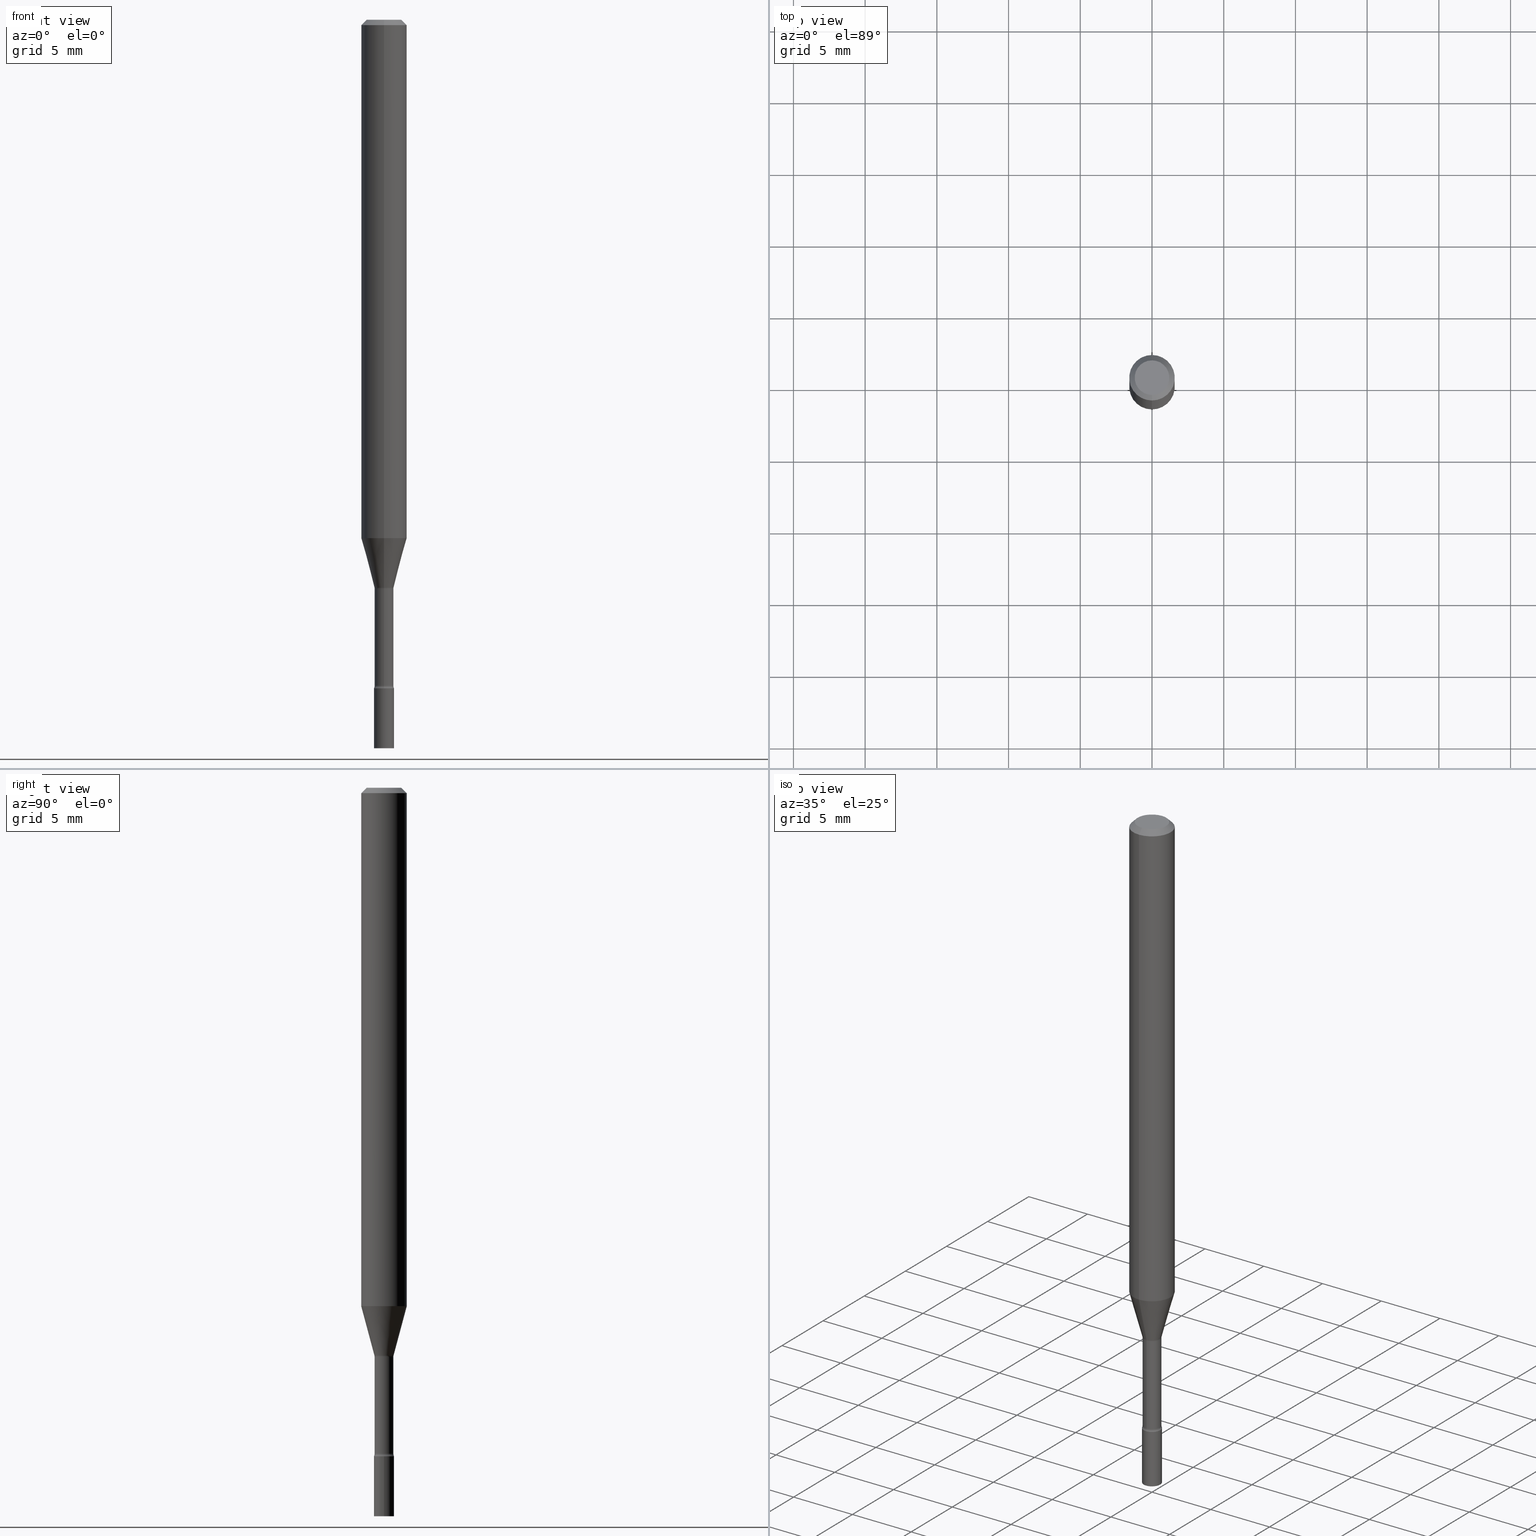
[diagram: canonical four-view strip — front | top / right | iso, engineering-drawing reading convention]
A machine part, canonical four-view strip (front | top / right | iso — engineering-drawing reading convention). The complete STEP part file that produces these views, byte-faithful:
ISO-10303-21;
HEADER;
FILE_DESCRIPTION (( 'STEP AP203' ),
    '1' );
FILE_NAME ('03465.STEP',
    '2024-03-08T21:26:40',
    ( '' ),
    ( '' ),
    'SwSTEP 2.0',
    'SolidWorks 2023',
    '' );
FILE_SCHEMA (( 'CONFIG_CONTROL_DESIGN' ));
ENDSEC;

DATA;
#1 = AXIS2_PLACEMENT_3D ( 'NONE', #92, #50, #341 ) ;
#2 = DIRECTION ( 'NONE',  ( 7.105427357601001859E-15, 1.000000000000000000, 0.000000000000000000 ) ) ;
#3 = AXIS2_PLACEMENT_3D ( 'NONE', #17, #498, #186 ) ;
#4 = LINE ( 'NONE', #168, #382 ) ;
#5 = APPROVAL ( #232, 'UNSPECIFIED' ) ;
#6 = VERTEX_POINT ( 'NONE', #208 ) ;
#7 = EDGE_CURVE ( 'NONE', #286, #110, #428, .T. ) ;
#8 = APPROVAL_PERSON_ORGANIZATION ( #204, #357, #400 ) ;
#9 = CONICAL_SURFACE ( 'NONE', #285, 0.06250000000000000000, 0.7853981633974483900 ) ;
#10 = DIRECTION ( 'NONE',  ( -6.982962677686265922E-15, -1.000000000000000000, 4.370956789862821150E-15 ) ) ;
#11 = DIRECTION ( 'NONE',  ( -2.445551873642688287E-29, 3.491362381516025357E-15, 1.000000000000000000 ) ) ;
#12 = CYLINDRICAL_SURFACE ( 'NONE', #305, 0.06250000000000000000 ) ;
#13 = DIRECTION ( 'NONE',  ( -4.851104656540964275E-15, -0.7071067811865500152, -0.7071067811865450192 ) ) ;
#14 = ADVANCED_FACE ( 'NONE', ( #201 ), #182, .F. ) ;
#15 = CARTESIAN_POINT ( 'NONE',  ( 4.487435259349726059E-29, -6.406868256777172111E-15, -1.834999999999999964 ) ) ;
#16 = TOROIDAL_SURFACE ( 'NONE', #260, 0.04085000000000003212, 0.01500000000000002200 ) ;
#17 = CARTESIAN_POINT ( 'NONE',  ( 4.470861561405432564E-29, -6.382771118735863784E-15, -1.828160592130893436 ) ) ;
#18 = DIRECTION ( 'NONE',  ( 1.000000000000000000, -6.982962677686279332E-15, 0.000000000000000000 ) ) ;
#19 =( LENGTH_UNIT ( ) NAMED_UNIT ( * ) SI_UNIT ( $, .METRE. ) );
#20 = DIRECTION ( 'NONE',  ( 1.000000000000000000, -6.982962677686279332E-15, 0.000000000000000000 ) ) ;
#21 = LENGTH_MEASURE_WITH_UNIT ( LENGTH_MEASURE( 0.02539999999999999897 ), #19 );
#22 = CARTESIAN_POINT ( 'NONE',  ( -4.364351673553916201E-16, -0.06250000000000000000, 2.182101488447516095E-16 ) ) ;
#23 = EDGE_CURVE ( 'NONE', #43, #371, #368, .T. ) ;
#24 = EDGE_CURVE ( 'NONE', #72, #487, #299, .T. ) ;
#25 = ORIENTED_EDGE ( 'NONE', *, *, #24, .T. ) ;
#26 = AXIS2_PLACEMENT_3D ( 'NONE', #54, #478, #2 ) ;
#27 = PERSON_AND_ORGANIZATION ( #253, #189 ) ;
#28 = ORIENTED_EDGE ( 'NONE', *, *, #240, .F. ) ;
#29 = EDGE_LOOP ( 'NONE', ( #296, #414, #160, #506 ) ) ;
#30 = AXIS2_PLACEMENT_3D ( 'NONE', #64, #356, #109 ) ;
#31 = PERSON_AND_ORGANIZATION_ROLE ( 'creator' ) ;
#32 = CIRCLE ( 'NONE', #26, 0.01500000000000003587 ) ;
#33 = EDGE_LOOP ( 'NONE', ( #80, #472, #462, #509 ) ) ;
#34 = ADVANCED_FACE ( 'NONE', ( #273 ), #454, .T. ) ;
#35 = EDGE_LOOP ( 'NONE', ( #331, #248, #443, #515 ) ) ;
#36 = CARTESIAN_POINT ( 'NONE',  ( 0.000000000000000000, 0.000000000000000000, 0.000000000000000000 ) ) ;
#37 = CC_DESIGN_APPROVAL ( #5, ( #335 ) ) ;
#38 = AXIS2_PLACEMENT_3D ( 'NONE', #46, #225, #494 ) ;
#39 = EDGE_LOOP ( 'NONE', ( #163, #297, #255, #105 ) ) ;
#40 = ORIENTED_EDGE ( 'NONE', *, *, #240, .T. ) ;
#41 = CARTESIAN_POINT ( 'NONE',  ( -1.805095852181899771E-16, -0.02585000000000000492, 9.025171756218928111E-17 ) ) ;
#42 = ORIENTED_EDGE ( 'NONE', *, *, #147, .T. ) ;
#43 = VERTEX_POINT ( 'NONE', #352 ) ;
#44 = ADVANCED_FACE ( 'NONE', ( #311 ), #432, .T. ) ;
#45 = PRODUCT_DEFINITION_SHAPE ( 'NONE', 'NONE',  #332 ) ;
#46 = CARTESIAN_POINT ( 'NONE',  ( 4.890937612370273194E-29, -6.982962677686291165E-15, -2.000000000000000000 ) ) ;
#47 = AXIS2_PLACEMENT_3D ( 'NONE', #488, #49, #122 ) ;
#48 = AXIS2_PLACEMENT_3D ( 'NONE', #364, #520, #173 ) ;
#49 = DIRECTION ( 'NONE',  ( -1.000000000000000000, 6.982962677686265922E-15, -4.883557194083112340E-29 ) ) ;
#50 = DIRECTION ( 'NONE',  ( -2.445551873642688007E-29, 3.491362381516025751E-15, 1.000000000000000000 ) ) ;
#51 = CARTESIAN_POINT ( 'NONE',  ( 3.668327810464039174E-31, -5.237043572274049745E-17, -0.01500000000000003067 ) ) ;
#52 = FACE_OUTER_BOUND ( 'NONE', #431, .T. ) ;
#53 =( NAMED_UNIT ( * ) PLANE_ANGLE_UNIT ( ) SI_UNIT ( $, .RADIAN. ) );
#54 = CARTESIAN_POINT ( 'NONE',  ( 2.902567075580391181E-16, 0.04084999999999455039, -1.561974787463811243 ) ) ;
#55 = APPLICATION_CONTEXT ( 'configuration controlled 3d designs of mechanical parts and assemblies' ) ;
#56 = CARTESIAN_POINT ( 'NONE',  ( 4.440892098500625669E-16, 0.06250000000000000000, -2.182101488447516095E-16 ) ) ;
#57 = CARTESIAN_POINT ( 'NONE',  ( 1.920314736364172109E-16, 0.02749999999999359554, -1.834999999999999964 ) ) ;
#58 = DIRECTION ( 'NONE',  ( -6.982962677686265922E-15, -1.000000000000000000, 3.491362381516025357E-15 ) ) ;
#59 = DIRECTION ( 'NONE',  ( 6.982962677686265922E-15, 1.000000000000000000, -3.491362381516025357E-15 ) ) ;
#60 = EDGE_CURVE ( 'NONE', #72, #399, #212, .T. ) ;
#61 = VECTOR ( 'NONE', #85, 39.37007874015748143 ) ;
#62 = DIRECTION ( 'NONE',  ( -2.445468806185136597E-29, 3.491481338843145583E-15, 1.000000000000000000 ) ) ;
#63 = EDGE_CURVE ( 'NONE', #487, #123, #218, .T. ) ;
#64 = CARTESIAN_POINT ( 'NONE',  ( 2.902567075580457741E-16, 0.04084999999999364834, -1.828160592130893436 ) ) ;
#65 = DIRECTION ( 'NONE',  ( 1.000000000000000000, -6.982962677686266711E-15, 4.876176775795935793E-29 ) ) ;
#66 = ORIENTED_EDGE ( 'NONE', *, *, #198, .T. ) ;
#67 = PERSON_AND_ORGANIZATION ( #253, #189 ) ;
#68 = CARTESIAN_POINT ( 'NONE',  ( 3.810396037054489114E-29, -5.439865547662276768E-15, -1.558092501787273099 ) ) ;
#69 = EDGE_LOOP ( 'NONE', ( #25, #75, #169, #179 ) ) ;
#70 = DIRECTION ( 'NONE',  ( -2.445551873642688287E-29, 3.491362381516025357E-15, 1.000000000000000000 ) ) ;
#71 = LINE ( 'NONE', #327, #434 ) ;
#72 = VERTEX_POINT ( 'NONE', #77 ) ;
#73 = CARTESIAN_POINT ( 'NONE',  ( 4.487587688134332838E-29, -6.406649970081907516E-15, -1.834999999999999964 ) ) ;
#74 = EDGE_LOOP ( 'NONE', ( #363, #243, #283, #220 ) ) ;
#75 = ORIENTED_EDGE ( 'NONE', *, *, #63, .T. ) ;
#76 = SHAPE_DEFINITION_REPRESENTATION ( #45, #161 ) ;
#77 = CARTESIAN_POINT ( 'NONE',  ( -1.840786654675983805E-16, -0.02636111260566941297, -1.558092501787273099 ) ) ;
#78 = LOCAL_TIME ( 16, 26, 40.00000000000000000, #309 ) ;
#79 = ADVANCED_FACE ( 'NONE', ( #497 ), #379, .T. ) ;
#80 = ORIENTED_EDGE ( 'NONE', *, *, #408, .T. ) ;
#81 = CARTESIAN_POINT ( 'NONE',  ( 4.487435259349726059E-29, -6.406868256777172111E-15, -1.834999999999999964 ) ) ;
#82 = AXIS2_PLACEMENT_3D ( 'NONE', #292, #366, #249 ) ;
#83 = DIRECTION ( 'NONE',  ( -1.807323732225326589E-15, -0.2588190451025176864, 0.9659258262890690894 ) ) ;
#84 = DIRECTION ( 'NONE',  ( -2.445551873642688007E-29, 3.491362381516025751E-15, 1.000000000000000000 ) ) ;
#85 = DIRECTION ( 'NONE',  ( 1.839019923739596765E-15, 0.2588190451025244587, 0.9659258262890673130 ) ) ;
#86 = ADVANCED_FACE ( 'NONE', ( #52 ), #9, .T. ) ;
#87 = ORIENTED_EDGE ( 'NONE', *, *, #147, .F. ) ;
#88 = CIRCLE ( 'NONE', #48, 0.01500000000000001853 ) ;
#89 = DIRECTION ( 'NONE',  ( 6.982962677686265922E-15, 1.000000000000000000, -3.483106191921935554E-15 ) ) ;
#90 = AXIS2_PLACEMENT_3D ( 'NONE', #427, #320, #411 ) ;
#91 = EDGE_CURVE ( 'NONE', #123, #466, #381, .T. ) ;
#92 = CARTESIAN_POINT ( 'NONE',  ( 0.000000000000000000, 0.000000000000000000, 0.000000000000000000 ) ) ;
#93 = CC_DESIGN_PERSON_AND_ORGANIZATION_ASSIGNMENT ( #517, #31, ( #335 ) ) ;
#94 = CARTESIAN_POINT ( 'NONE',  ( 4.487435259349726059E-29, -6.406868256777172111E-15, -1.834999999999999964 ) ) ;
#95 = FACE_OUTER_BOUND ( 'NONE', #254, .T. ) ;
#96 = CIRCLE ( 'NONE', #3, 0.02585000000000001186 ) ;
#97 = CARTESIAN_POINT ( 'NONE',  ( 3.480559163964085406E-29, -4.968977948361667747E-15, -1.423220337902600718 ) ) ;
#98 = DIRECTION ( 'NONE',  ( 2.438088387897960049E-29, -3.491481338843145188E-15, -1.000000000000000000 ) ) ;
#99 = DIRECTION ( 'NONE',  ( 1.000000000000000000, 0.000000000000000000, 0.000000000000000000 ) ) ;
#100 = LINE ( 'NONE', #272, #438 ) ;
#101 = CARTESIAN_POINT ( 'NONE',  ( 4.440892098500972274E-16, 0.06249999999999501094, -1.423220337902601162 ) ) ;
#102 = MECHANICAL_CONTEXT ( 'NONE', #136, 'mechanical' ) ;
#103 = SECURITY_CLASSIFICATION ( '', '', #239 ) ;
#104 = CARTESIAN_POINT ( 'NONE',  ( -4.287811248607203282E-16, -0.06250000000000005551, -0.01499999999999981209 ) ) ;
#105 = ORIENTED_EDGE ( 'NONE', *, *, #7, .F. ) ;
#106 = CLOSED_SHELL ( 'NONE', ( #301, #44, #79, #34 ) ) ;
#107 = CARTESIAN_POINT ( 'NONE',  ( 0.000000000000000000, 0.000000000000000000, 0.000000000000000000 ) ) ;
#108 = CARTESIAN_POINT ( 'NONE',  ( -0.02750000000000000014, -6.499516214897703913E-15, -2.000000000000000000 ) ) ;
#109 = DIRECTION ( 'NONE',  ( 7.105427357601001859E-15, 1.000000000000000000, 0.000000000000000000 ) ) ;
#110 = VERTEX_POINT ( 'NONE', #457 ) ;
#111 = PERSON_AND_ORGANIZATION_ROLE ( 'classification_officer' ) ;
#112 = CARTESIAN_POINT ( 'NONE',  ( -1.805095852181453325E-16, -0.02585000000000639564, -1.828160592130893436 ) ) ;
#113 = CC_DESIGN_SECURITY_CLASSIFICATION ( #103, ( #335 ) ) ;
#114 = ADVANCED_FACE ( 'NONE', ( #451 ), #484, .T. ) ;
#115 = AXIS2_PLACEMENT_3D ( 'NONE', #81, #246, #244 ) ;
#116 = ORIENTED_EDGE ( 'NONE', *, *, #342, .F. ) ;
#117 = DATE_AND_TIME ( #199, #328 ) ;
#118 = ORIENTED_EDGE ( 'NONE', *, *, #60, .T. ) ;
#119 = COORDINATED_UNIVERSAL_TIME_OFFSET ( 5, 0, .BEHIND. ) ;
#120 = CYLINDRICAL_SURFACE ( 'NONE', #460, 0.02585000000000000492 ) ;
#121 = EDGE_CURVE ( 'NONE', #300, #360, #96, .T. ) ;
#122 = DIRECTION ( 'NONE',  ( -6.982962677686268288E-15, -1.000000000000000000, 0.000000000000000000 ) ) ;
#123 = VERTEX_POINT ( 'NONE', #101 ) ;
#124 = EDGE_CURVE ( 'NONE', #508, #210, #294, .T. ) ;
#125 = EDGE_CURVE ( 'NONE', #399, #391, #127, .T. ) ;
#126 = ORIENTED_EDGE ( 'NONE', *, *, #394, .F. ) ;
#127 = CIRCLE ( 'NONE', #175, 0.02584999999999999798 ) ;
#128 = VERTEX_POINT ( 'NONE', #262 ) ;
#129 = VECTOR ( 'NONE', #317, 39.37007874015748143 ) ;
#130 = CYLINDRICAL_SURFACE ( 'NONE', #372, 0.02750000000000000014 ) ;
#131 = FACE_OUTER_BOUND ( 'NONE', #35, .T. ) ;
#132 = CARTESIAN_POINT ( 'NONE',  ( 3.316907271900976096E-16, 0.04749999999999999362, -1.802994938224648205E-16 ) ) ;
#133 = CIRCLE ( 'NONE', #409, 0.06250000000000000000 ) ;
#134 = ORIENTED_EDGE ( 'NONE', *, *, #503, .T. ) ;
#135 = DIRECTION ( 'NONE',  ( -2.445551873642688007E-29, 3.491362381516025751E-15, 1.000000000000000000 ) ) ;
#136 = APPLICATION_CONTEXT ( 'configuration controlled 3d designs of mechanical parts and assemblies' ) ;
#137 = CARTESIAN_POINT ( 'NONE',  ( 0.02750000000000000014, -7.174994151322663658E-15, -2.000000000000000000 ) ) ;
#138 = CARTESIAN_POINT ( 'NONE',  ( 3.810396037054489114E-29, -5.439865547662276768E-15, -1.558092501787273099 ) ) ;
#139 = CARTESIAN_POINT ( 'NONE',  ( 3.668327810464039174E-31, -5.237043572274049745E-17, -0.01500000000000003067 ) ) ;
#140 = DIRECTION ( 'NONE',  ( -6.982962677686265922E-15, -1.000000000000000000, 3.491362381516025357E-15 ) ) ;
#141 = CARTESIAN_POINT ( 'NONE',  ( 3.480559163964085406E-29, -4.968977948361667747E-15, -1.423220337902600718 ) ) ;
#142 = DIRECTION ( 'NONE',  ( 2.445551873642688007E-29, -3.491362381516025751E-15, -1.000000000000000000 ) ) ;
#143 = DIRECTION ( 'NONE',  ( -2.445551873642688007E-29, 3.491362381516025751E-15, 1.000000000000000000 ) ) ;
#144 = FACE_OUTER_BOUND ( 'NONE', #437, .T. ) ;
#145 =( CONVERSION_BASED_UNIT ( 'INCH', #21 ) LENGTH_UNIT ( ) NAMED_UNIT ( #184 ) );
#146 = MANIFOLD_SOLID_BREP ( 'Body-Move/Copy2[1]', #106 ) ;
#147 = EDGE_CURVE ( 'NONE', #371, #466, #416, .T. ) ;
#148 = MANIFOLD_SOLID_BREP ( 'Body-Move/Copy2[2]', #330 ) ;
#149 = DIRECTION ( 'NONE',  ( -6.982962677686266711E-15, -1.000000000000000000, 0.000000000000000000 ) ) ;
#150 = PERSON_AND_ORGANIZATION_ROLE ( 'creator' ) ;
#151 = LOCAL_TIME ( 16, 26, 40.00000000000000000, #119 ) ;
#152 = AXIS2_PLACEMENT_3D ( 'NONE', #282, #98, #268 ) ;
#153 = DIRECTION ( 'NONE',  ( 0.000000000000000000, 0.000000000000000000, 1.000000000000000000 ) ) ;
#154 = ORIENTED_EDGE ( 'NONE', *, *, #203, .F. ) ;
#155 = DATE_TIME_ROLE ( 'classification_date' ) ;
#156 = DIRECTION ( 'NONE',  ( -6.982962677686266711E-15, -1.000000000000000000, 0.000000000000000000 ) ) ;
#157 = DIRECTION ( 'NONE',  ( -6.982962677686265922E-15, -1.000000000000000000, 0.000000000000000000 ) ) ;
#158 = EDGE_LOOP ( 'NONE', ( #510, #126 ) ) ;
#159 = DIRECTION ( 'NONE',  ( -6.982962677686265922E-15, -1.000000000000000000, 3.491362381516025751E-15 ) ) ;
#160 = ORIENTED_EDGE ( 'NONE', *, *, #319, .F. ) ;
#161 = ADVANCED_BREP_SHAPE_REPRESENTATION ( '03465', ( #146, #148, #312 ), #241 ) ;
#162 = AXIS2_PLACEMENT_3D ( 'NONE', #68, #235, #157 ) ;
#163 = ORIENTED_EDGE ( 'NONE', *, *, #445, .F. ) ;
#164 = CC_DESIGN_PERSON_AND_ORGANIZATION_ASSIGNMENT ( #482, #111, ( #103 ) ) ;
#165 = FACE_OUTER_BOUND ( 'NONE', #33, .T. ) ;
#166 = CARTESIAN_POINT ( 'NONE',  ( 1.873069706851234863E-16, 0.02636111260565853626, -1.558092501787273099 ) ) ;
#167 = EDGE_CURVE ( 'NONE', #391, #399, #242, .T. ) ;
#168 = CARTESIAN_POINT ( 'NONE',  ( -1.840786654675983805E-16, -0.02636111260566941297, -1.558092501787273099 ) ) ;
#169 = ORIENTED_EDGE ( 'NONE', *, *, #476, .F. ) ;
#170 = ORIENTED_EDGE ( 'NONE', *, *, #167, .T. ) ;
#171 = APPROVAL_DATE_TIME ( #287, #357 ) ;
#172 = DIRECTION ( 'NONE',  ( -2.445551873642688007E-29, 3.491362381516025751E-15, 1.000000000000000000 ) ) ;
#173 = DIRECTION ( 'NONE',  ( -6.982962677686267499E-15, -1.000000000000000000, 0.000000000000000000 ) ) ;
#174 = AXIS2_PLACEMENT_3D ( 'NONE', #73, #276, #156 ) ;
#175 = AXIS2_PLACEMENT_3D ( 'NONE', #353, #501, #149 ) ;
#176 = CYLINDRICAL_SURFACE ( 'NONE', #448, 0.06250000000000000000 ) ;
#177 = EDGE_LOOP ( 'NONE', ( #197, #384 ) ) ;
#178 = LINE ( 'NONE', #41, #449 ) ;
#179 = ORIENTED_EDGE ( 'NONE', *, *, #264, .F. ) ;
#180 = ADVANCED_FACE ( 'NONE', ( #95 ), #16, .F. ) ;
#181 = TOROIDAL_SURFACE ( 'NONE', #425, 0.04085000000000000436, 0.01500000000000003414 ) ;
#182 = TOROIDAL_SURFACE ( 'NONE', #90, 0.04085000000000000436, 0.01500000000000003414 ) ;
#183 = EDGE_CURVE ( 'NONE', #123, #479, #362, .T. ) ;
#184 = DIMENSIONAL_EXPONENTS ( 1.000000000000000000, 0.000000000000000000, 0.000000000000000000, 0.000000000000000000, 0.000000000000000000, 0.000000000000000000, 0.000000000000000000 ) ;
#185 = CARTESIAN_POINT ( 'NONE',  ( 4.470709700753047363E-29, -6.382988591833448692E-15, -1.828160592130893214 ) ) ;
#186 = DIRECTION ( 'NONE',  ( -6.982962677686265922E-15, -1.000000000000000000, 0.000000000000000000 ) ) ;
#187 = COORDINATED_UNIVERSAL_TIME_OFFSET ( 5, 0, .BEHIND. ) ;
#188 = DIRECTION ( 'NONE',  ( -6.982962677686266711E-15, -1.000000000000000000, 3.491362381516025751E-15 ) ) ;
#189 = ORGANIZATION ( 'UNSPECIFIED', 'UNSPECIFIED', '' ) ;
#190 = DIRECTION ( 'NONE',  ( -2.445551873642688007E-29, 3.491362381516025751E-15, 1.000000000000000000 ) ) ;
#191 = APPROVAL_STATUS ( 'not_yet_approved' ) ;
#192 = CARTESIAN_POINT ( 'NONE',  ( 4.890937612370273194E-29, -6.982962677686291165E-15, -2.000000000000000000 ) ) ;
#193 = PERSON_AND_ORGANIZATION ( #253, #189 ) ;
#194 = CARTESIAN_POINT ( 'NONE',  ( 1.836752971939858837E-16, 0.02585000000000000492, -9.025171756218928111E-17 ) ) ;
#195 = CIRCLE ( 'NONE', #380, 0.06250000000000000000 ) ;
#196 = TOROIDAL_SURFACE ( 'NONE', #322, 0.04085000000000003212, 0.01500000000000002200 ) ;
#197 = ORIENTED_EDGE ( 'NONE', *, *, #214, .T. ) ;
#198 = EDGE_CURVE ( 'NONE', #466, #405, #133, .T. ) ;
#199 = CALENDAR_DATE ( 2024, 8, 3 ) ;
#200 = EDGE_LOOP ( 'NONE', ( #213, #426, #430, #481 ) ) ;
#201 = FACE_OUTER_BOUND ( 'NONE', #442, .T. ) ;
#202 = VECTOR ( 'NONE', #13, 39.37007874015748143 ) ;
#203 = EDGE_CURVE ( 'NONE', #210, #508, #419, .T. ) ;
#204 = PERSON_AND_ORGANIZATION ( #253, #189 ) ;
#205 = CC_DESIGN_DATE_AND_TIME_ASSIGNMENT ( #473, #155, ( #103 ) ) ;
#206 = ORIENTED_EDGE ( 'NONE', *, *, #124, .F. ) ;
#207 = DESIGN_CONTEXT ( 'detailed design', #55, 'design' ) ;
#208 = CARTESIAN_POINT ( 'NONE',  ( 1.953992523340724679E-16, 0.02749999999999360248, -1.834999999999999964 ) ) ;
#209 = EDGE_CURVE ( 'NONE', #43, #405, #418, .T. ) ;
#210 = VERTEX_POINT ( 'NONE', #137 ) ;
#211 = AXIS2_PLACEMENT_3D ( 'NONE', #57, #415, #280 ) ;
#212 = CIRCLE ( 'NONE', #47, 0.01500000000000003587 ) ;
#213 = ORIENTED_EDGE ( 'NONE', *, *, #386, .F. ) ;
#214 = EDGE_CURVE ( 'NONE', #371, #43, #461, .T. ) ;
#215 = AXIS2_PLACEMENT_3D ( 'NONE', #107, #313, #269 ) ;
#216 = FACE_OUTER_BOUND ( 'NONE', #200, .T. ) ;
#217 = AXIS2_PLACEMENT_3D ( 'NONE', #15, #270, #18 ) ;
#218 = LINE ( 'NONE', #166, #61 ) ;
#219 = CYLINDRICAL_SURFACE ( 'NONE', #1, 0.02585000000000000492 ) ;
#220 = ORIENTED_EDGE ( 'NONE', *, *, #198, .F. ) ;
#221 = DIRECTION ( 'NONE',  ( -2.445468806185136877E-29, 3.491481338843145188E-15, 1.000000000000000000 ) ) ;
#222 = DIRECTION ( 'NONE',  ( -6.982962677686265922E-15, -1.000000000000000000, 0.000000000000000000 ) ) ;
#223 = AXIS2_PLACEMENT_3D ( 'NONE', #429, #507, #389 ) ;
#224 = PERSON_AND_ORGANIZATION_ROLE ( 'design_owner' ) ;
#225 = DIRECTION ( 'NONE',  ( -2.445468806185136597E-29, 3.491481338843145583E-15, 1.000000000000000000 ) ) ;
#226 = AXIS2_PLACEMENT_3D ( 'NONE', #94, #259, #413 ) ;
#227 = ORIENTED_EDGE ( 'NONE', *, *, #337, .F. ) ;
#228 = CARTESIAN_POINT ( 'NONE',  ( 0.000000000000000000, 0.000000000000000000, 0.000000000000000000 ) ) ;
#229 = CC_DESIGN_PERSON_AND_ORGANIZATION_ASSIGNMENT ( #27, #358, ( #335 ) ) ;
#230 = ORIENTED_EDGE ( 'NONE', *, *, #408, .F. ) ;
#231 = ADVANCED_FACE ( 'NONE', ( #344 ), #196, .F. ) ;
#232 = APPROVAL_STATUS ( 'not_yet_approved' ) ;
#233 = CARTESIAN_POINT ( 'NONE',  ( 1.836752971940306269E-16, 0.02584999999999454401, -1.561974787463811021 ) ) ;
#234 = CONICAL_SURFACE ( 'NONE', #162, 0.02636111260566397288, 0.2617993877991497409 ) ;
#235 = DIRECTION ( 'NONE',  ( -2.445551873642688007E-29, 3.491362381516025751E-15, 1.000000000000000000 ) ) ;
#236 = CONICAL_SURFACE ( 'NONE', #314, 0.06250000000000000000, 0.7853981633974483900 ) ;
#237 = ORIENTED_EDGE ( 'NONE', *, *, #394, .T. ) ;
#238 = ORIENTED_EDGE ( 'NONE', *, *, #214, .F. ) ;
#239 = SECURITY_CLASSIFICATION_LEVEL ( 'unclassified' ) ;
#240 = EDGE_CURVE ( 'NONE', #487, #391, #32, .T. ) ;
#241 =( GEOMETRIC_REPRESENTATION_CONTEXT ( 3 ) GLOBAL_UNCERTAINTY_ASSIGNED_CONTEXT ( ( #433 ) ) GLOBAL_UNIT_ASSIGNED_CONTEXT ( ( #145, #53, #504 ) ) REPRESENTATION_CONTEXT ( 'NONE', 'WORKASPACE' ) );
#242 = CIRCLE ( 'NONE', #338, 0.02584999999999999798 ) ;
#243 = ORIENTED_EDGE ( 'NONE', *, *, #183, .T. ) ;
#244 = DIRECTION ( 'NONE',  ( 1.000000000000000000, -6.982962677686279332E-15, 0.000000000000000000 ) ) ;
#245 = ORIENTED_EDGE ( 'NONE', *, *, #337, .T. ) ;
#246 = DIRECTION ( 'NONE',  ( -2.445468806185136597E-29, 3.491481338843145583E-15, 1.000000000000000000 ) ) ;
#247 = CARTESIAN_POINT ( 'NONE',  ( 0.000000000000000000, 0.000000000000000000, 0.000000000000000000 ) ) ;
#248 = ORIENTED_EDGE ( 'NONE', *, *, #256, .T. ) ;
#249 = DIRECTION ( 'NONE',  ( -6.982962677686265922E-15, -1.000000000000000000, 0.000000000000000000 ) ) ;
#250 = ADVANCED_FACE ( 'NONE', ( #370 ), #236, .T. ) ;
#251 = CIRCLE ( 'NONE', #174, 0.02750000000000000014 ) ;
#252 = AXIS2_PLACEMENT_3D ( 'NONE', #192, #62, #20 ) ;
#253 = PERSON ( 'UNSPECIFIED', 'UNSPECIFIED', 'UNSPECIFIED', ('UNSPECIFIED'), ('UNSPECIFIED'), ('UNSPECIFIED') ) ;
#254 = EDGE_LOOP ( 'NONE', ( #258, #134, #237, #227 ) ) ;
#255 = ORIENTED_EDGE ( 'NONE', *, *, #342, .T. ) ;
#256 = EDGE_CURVE ( 'NONE', #487, #72, #307, .T. ) ;
#257 = CARTESIAN_POINT ( 'NONE',  ( -4.364351673553912750E-16, -0.06250000000000005551, -0.01499999999999981209 ) ) ;
#258 = ORIENTED_EDGE ( 'NONE', *, *, #121, .F. ) ;
#259 = DIRECTION ( 'NONE',  ( -2.438088387897960049E-29, 3.491481338843145188E-15, 1.000000000000000000 ) ) ;
#260 = AXIS2_PLACEMENT_3D ( 'NONE', #185, #190, #58 ) ;
#261 = FACE_OUTER_BOUND ( 'NONE', #29, .T. ) ;
#262 = CARTESIAN_POINT ( 'NONE',  ( -1.920314736363275026E-16, -0.02750000000000642209, -1.834999999999999964 ) ) ;
#263 = DIRECTION ( 'NONE',  ( -2.445551873642688007E-29, 3.491362381516025751E-15, 1.000000000000000000 ) ) ;
#264 = EDGE_CURVE ( 'NONE', #72, #479, #4, .T. ) ;
#265 = CARTESIAN_POINT ( 'NONE',  ( -4.364351673553569595E-16, -0.06250000000000498213, -1.423220337902600496 ) ) ;
#266 = ORIENTED_EDGE ( 'NONE', *, *, #125, .T. ) ;
#267 = EDGE_CURVE ( 'NONE', #360, #399, #178, .T. ) ;
#268 = DIRECTION ( 'NONE',  ( -1.000000000000000000, 6.982962677686265922E-15, -4.876176775795935793E-29 ) ) ;
#269 = DIRECTION ( 'NONE',  ( 1.000000000000000000, -6.982962677686266711E-15, 4.876176775795935793E-29 ) ) ;
#270 = DIRECTION ( 'NONE',  ( -2.445468806185136597E-29, 3.491481338843145583E-15, 1.000000000000000000 ) ) ;
#271 = ORIENTED_EDGE ( 'NONE', *, *, #209, .F. ) ;
#272 = CARTESIAN_POINT ( 'NONE',  ( -0.02750000000000000014, 1.953992523340275521E-16, -1.352707149820099181E-30 ) ) ;
#273 = FACE_OUTER_BOUND ( 'NONE', #440, .T. ) ;
#274 = AXIS2_PLACEMENT_3D ( 'NONE', #132, #456, #59 ) ;
#275 = APPLICATION_PROTOCOL_DEFINITION ( 'international standard', 'config_control_design', 1994, #55 ) ;
#276 = DIRECTION ( 'NONE',  ( -2.445551873642688007E-29, 3.491362381516025751E-15, 1.000000000000000000 ) ) ;
#277 = AXIS2_PLACEMENT_3D ( 'NONE', #138, #306, #465 ) ;
#278 = ADVANCED_FACE ( 'NONE', ( #326 ), #176, .T. ) ;
#279 = FACE_OUTER_BOUND ( 'NONE', #177, .T. ) ;
#280 = DIRECTION ( 'NONE',  ( -6.982962677686265922E-15, -1.000000000000000000, 3.491362381516025357E-15 ) ) ;
#281 = DIRECTION ( 'NONE',  ( -2.445468806185136597E-29, 3.491481338843145583E-15, 1.000000000000000000 ) ) ;
#282 = CARTESIAN_POINT ( 'NONE',  ( 1.920314736364212538E-16, 0.02749999999999301961, -2.000000000000000000 ) ) ;
#283 = ORIENTED_EDGE ( 'NONE', *, *, #376, .T. ) ;
#284 = APPROVAL_PERSON_ORGANIZATION ( #67, #5, #343 ) ;
#285 = AXIS2_PLACEMENT_3D ( 'NONE', #139, #142, #308 ) ;
#286 = VERTEX_POINT ( 'NONE', #324 ) ;
#287 = DATE_AND_TIME ( #475, #295 ) ;
#288 = LINE ( 'NONE', #22, #129 ) ;
#289 = CC_DESIGN_PERSON_AND_ORGANIZATION_ASSIGNMENT ( #422, #224, ( #334 ) ) ;
#290 = EDGE_LOOP ( 'NONE', ( #318, #325, #316, #87 ) ) ;
#291 = EDGE_LOOP ( 'NONE', ( #401, #230, #245, #395 ) ) ;
#292 = CARTESIAN_POINT ( 'NONE',  ( 3.810396037054489114E-29, -5.439865547662276768E-15, -1.558092501787273099 ) ) ;
#293 = DIRECTION ( 'NONE',  ( -6.982962677686265922E-15, -1.000000000000000000, 3.483106191921935554E-15 ) ) ;
#294 = CIRCLE ( 'NONE', #252, 0.02750000000000000014 ) ;
#295 = LOCAL_TIME ( 16, 26, 40.00000000000000000, #323 ) ;
#296 = ORIENTED_EDGE ( 'NONE', *, *, #476, .T. ) ;
#297 = ORIENTED_EDGE ( 'NONE', *, *, #124, .T. ) ;
#298 = ORIENTED_EDGE ( 'NONE', *, *, #203, .T. ) ;
#299 = CIRCLE ( 'NONE', #277, 0.02636111260566397288 ) ;
#300 = VERTEX_POINT ( 'NONE', #435 ) ;
#301 = ADVANCED_FACE ( 'NONE', ( #483 ), #130, .T. ) ;
#302 = CARTESIAN_POINT ( 'NONE',  ( 4.470861561405432564E-29, -6.382771118735863784E-15, -1.828160592130893436 ) ) ;
#303 = DIRECTION ( 'NONE',  ( -6.982962677686265922E-15, -1.000000000000000000, 0.000000000000000000 ) ) ;
#304 = DIRECTION ( 'NONE',  ( -2.445551873642688007E-29, 3.491362381516025751E-15, 1.000000000000000000 ) ) ;
#305 = AXIS2_PLACEMENT_3D ( 'NONE', #247, #486, #159 ) ;
#306 = DIRECTION ( 'NONE',  ( -2.445551873642688007E-29, 3.491362381516025751E-15, 1.000000000000000000 ) ) ;
#307 = CIRCLE ( 'NONE', #82, 0.02636111260566397288 ) ;
#308 = DIRECTION ( 'NONE',  ( 6.982962677686265922E-15, 1.000000000000000000, -3.483106191921935554E-15 ) ) ;
#309 = COORDINATED_UNIVERSAL_TIME_OFFSET ( 5, 0, .BEHIND. ) ;
#310 = CARTESIAN_POINT ( 'NONE',  ( 3.819890368064762406E-29, -5.453420013827639268E-15, -1.561974787463811021 ) ) ;
#311 = FACE_OUTER_BOUND ( 'NONE', #361, .T. ) ;
#312 = AXIS2_PLACEMENT_3D ( 'NONE', #228, #153, #99 ) ;
#313 = DIRECTION ( 'NONE',  ( -2.445468806185136597E-29, 3.491481338843145583E-15, 1.000000000000000000 ) ) ;
#314 = AXIS2_PLACEMENT_3D ( 'NONE', #403, #333, #89 ) ;
#315 = CALENDAR_DATE ( 2024, 8, 3 ) ;
#316 = ORIENTED_EDGE ( 'NONE', *, *, #319, .T. ) ;
#317 = DIRECTION ( 'NONE',  ( -2.445551873642688287E-29, 3.491362381516025357E-15, 1.000000000000000000 ) ) ;
#318 = ORIENTED_EDGE ( 'NONE', *, *, #23, .F. ) ;
#319 = EDGE_CURVE ( 'NONE', #405, #466, #195, .T. ) ;
#320 = DIRECTION ( 'NONE',  ( -2.445551873642688007E-29, 3.491362381516025751E-15, 1.000000000000000000 ) ) ;
#321 = CIRCLE ( 'NONE', #217, 0.02750000000000000014 ) ;
#322 = AXIS2_PLACEMENT_3D ( 'NONE', #351, #347, #500 ) ;
#323 = COORDINATED_UNIVERSAL_TIME_OFFSET ( 5, 0, .BEHIND. ) ;
#324 = CARTESIAN_POINT ( 'NONE',  ( -0.02750000000000000014, -6.499516214897703913E-15, -1.834999999999999964 ) ) ;
#325 = ORIENTED_EDGE ( 'NONE', *, *, #209, .T. ) ;
#326 = FACE_OUTER_BOUND ( 'NONE', #74, .T. ) ;
#327 = CARTESIAN_POINT ( 'NONE',  ( 0.02750000000000000014, -1.920314736363723444E-16, 1.340948613343882413E-30 ) ) ;
#328 = LOCAL_TIME ( 16, 26, 40.00000000000000000, #452 ) ;
#329 = ADVANCED_FACE ( 'NONE', ( #165 ), #120, .T. ) ;
#330 = CLOSED_SHELL ( 'NONE', ( #469, #329, #180, #250, #412, #114, #359, #278, #86, #424, #492, #231, #404, #14 ) ) ;
#331 = ORIENTED_EDGE ( 'NONE', *, *, #63, .F. ) ;
#332 = PRODUCT_DEFINITION ( 'UNKNOWN', '', #335, #207 ) ;
#333 = DIRECTION ( 'NONE',  ( 2.445551873642688007E-29, -3.491362381516025751E-15, -1.000000000000000000 ) ) ;
#334 = PRODUCT ( '03465', '03465', '', ( #102 ) ) ;
#335 = PRODUCT_DEFINITION_FORMATION_WITH_SPECIFIED_SOURCE ( 'ANY', '', #334, .NOT_KNOWN. ) ;
#336 = EDGE_LOOP ( 'NONE', ( #298, #365, #402, #116 ) ) ;
#337 = EDGE_CURVE ( 'NONE', #360, #128, #88, .T. ) ;
#338 = AXIS2_PLACEMENT_3D ( 'NONE', #310, #378, #406 ) ;
#339 = ORIENTED_EDGE ( 'NONE', *, *, #447, .T. ) ;
#340 = DIRECTION ( 'NONE',  ( -6.982962677686265922E-15, -1.000000000000000000, 3.483106191921935554E-15 ) ) ;
#341 = DIRECTION ( 'NONE',  ( -6.982962677686264344E-15, -1.000000000000000000, 3.491362381516025751E-15 ) ) ;
#342 = EDGE_CURVE ( 'NONE', #210, #110, #71, .T. ) ;
#343 = APPROVAL_ROLE ( '' ) ;
#344 = FACE_OUTER_BOUND ( 'NONE', #291, .T. ) ;
#345 = CC_DESIGN_APPROVAL ( #357, ( #103 ) ) ;
#346 = DIRECTION ( 'NONE',  ( -2.445551873642688007E-29, 3.491362381516025751E-15, 1.000000000000000000 ) ) ;
#347 = DIRECTION ( 'NONE',  ( -2.445551873642688007E-29, 3.491362381516025751E-15, 1.000000000000000000 ) ) ;
#348 = DIRECTION ( 'NONE',  ( -6.982962677686266711E-15, -1.000000000000000000, 3.491362381516025751E-15 ) ) ;
#349 = CARTESIAN_POINT ( 'NONE',  ( 4.440892098500976219E-16, 0.06249999999999995143, -0.01500000000000024751 ) ) ;
#350 = APPROVAL_ROLE ( '' ) ;
#351 = CARTESIAN_POINT ( 'NONE',  ( 4.470709700753047363E-29, -6.382988591833448692E-15, -1.828160592130893214 ) ) ;
#352 = CARTESIAN_POINT ( 'NONE',  ( -3.773273898774340269E-16, -0.04749999999999999362, 1.369201517211040217E-16 ) ) ;
#353 = CARTESIAN_POINT ( 'NONE',  ( 3.819890368064762406E-29, -5.453420013827639268E-15, -1.561974787463811021 ) ) ;
#354 = PERSON_AND_ORGANIZATION ( #253, #189 ) ;
#355 = DIRECTION ( 'NONE',  ( -2.445551873642688007E-29, 3.491362381516025751E-15, 1.000000000000000000 ) ) ;
#356 = DIRECTION ( 'NONE',  ( 1.000000000000000000, -7.105427357601001070E-15, 4.926314051734983585E-29 ) ) ;
#357 = APPROVAL ( #441, 'UNSPECIFIED' ) ;
#358 = PERSON_AND_ORGANIZATION_ROLE ( 'design_supplier' ) ;
#359 = ADVANCED_FACE ( 'NONE', ( #131 ), #234, .T. ) ;
#360 = VERTEX_POINT ( 'NONE', #112 ) ;
#361 = EDGE_LOOP ( 'NONE', ( #339, #514 ) ) ;
#362 = CIRCLE ( 'NONE', #490, 0.06250000000000000000 ) ;
#363 = ORIENTED_EDGE ( 'NONE', *, *, #91, .F. ) ;
#364 = CARTESIAN_POINT ( 'NONE',  ( -2.852540253834394663E-16, -0.04085000000000641590, -1.828160592130892770 ) ) ;
#365 = ORIENTED_EDGE ( 'NONE', *, *, #445, .T. ) ;
#366 = DIRECTION ( 'NONE',  ( -2.445551873642688007E-29, 3.491362381516025751E-15, 1.000000000000000000 ) ) ;
#367 = AXIS2_PLACEMENT_3D ( 'NONE', #302, #135, #303 ) ;
#368 = CIRCLE ( 'NONE', #393, 0.04749999999999999362 ) ;
#369 = EDGE_CURVE ( 'NONE', #128, #6, #471, .T. ) ;
#370 = FACE_OUTER_BOUND ( 'NONE', #290, .T. ) ;
#371 = VERTEX_POINT ( 'NONE', #468 ) ;
#372 = AXIS2_PLACEMENT_3D ( 'NONE', #464, #281, #65 ) ;
#373 = AXIS2_PLACEMENT_3D ( 'NONE', #495, #304, #188 ) ;
#374 = PRODUCT_RELATED_PRODUCT_CATEGORY ( 'detail', '', ( #334 ) ) ;
#375 = DIRECTION ( 'NONE',  ( -2.445551873642688007E-29, 3.491362381516025751E-15, 1.000000000000000000 ) ) ;
#376 = EDGE_CURVE ( 'NONE', #479, #405, #288, .T. ) ;
#377 = CARTESIAN_POINT ( 'NONE',  ( 3.810396037054489114E-29, -5.439865547662276768E-15, -1.558092501787273099 ) ) ;
#378 = DIRECTION ( 'NONE',  ( -2.445551873642688007E-29, 3.491362381516025751E-15, 1.000000000000000000 ) ) ;
#379 = CYLINDRICAL_SURFACE ( 'NONE', #215, 0.02750000000000000014 ) ;
#380 = AXIS2_PLACEMENT_3D ( 'NONE', #397, #511, #293 ) ;
#381 = LINE ( 'NONE', #56, #436 ) ;
#382 = VECTOR ( 'NONE', #83, 39.37007874015748854 ) ;
#383 = DIRECTION ( 'NONE',  ( -6.982962677686265922E-15, -1.000000000000000000, 4.370956789862821150E-15 ) ) ;
#384 = ORIENTED_EDGE ( 'NONE', *, *, #23, .T. ) ;
#385 = CARTESIAN_POINT ( 'NONE',  ( 3.819760618790408419E-29, -5.453605822173385006E-15, -1.561974787463811021 ) ) ;
#386 = EDGE_CURVE ( 'NONE', #300, #391, #505, .T. ) ;
#387 = CC_DESIGN_DATE_AND_TIME_ASSIGNMENT ( #458, #467, ( #332 ) ) ;
#388 = CARTESIAN_POINT ( 'NONE',  ( 3.156980902676104924E-16, 0.02636111260565853626, -1.558092501787273099 ) ) ;
#389 = DIRECTION ( 'NONE',  ( -6.982962677686266711E-15, -1.000000000000000000, 0.000000000000000000 ) ) ;
#390 = LOCAL_TIME ( 16, 26, 40.00000000000000000, #187 ) ;
#391 = VERTEX_POINT ( 'NONE', #233 ) ;
#392 = DATE_AND_TIME ( #315, #390 ) ;
#393 = AXIS2_PLACEMENT_3D ( 'NONE', #516, #355, #348 ) ;
#394 = EDGE_CURVE ( 'NONE', #6, #128, #251, .T. ) ;
#395 = ORIENTED_EDGE ( 'NONE', *, *, #369, .T. ) ;
#396 = ORIENTED_EDGE ( 'NONE', *, *, #24, .F. ) ;
#397 = CARTESIAN_POINT ( 'NONE',  ( 3.668327810464039174E-31, -5.237043572274049745E-17, -0.01500000000000003067 ) ) ;
#398 = VECTOR ( 'NONE', #453, 39.37007874015748143 ) ;
#399 = VERTEX_POINT ( 'NONE', #493 ) ;
#400 = APPROVAL_ROLE ( '' ) ;
#401 = ORIENTED_EDGE ( 'NONE', *, *, #503, .F. ) ;
#402 = ORIENTED_EDGE ( 'NONE', *, *, #447, .F. ) ;
#403 = CARTESIAN_POINT ( 'NONE',  ( 3.668327810464039174E-31, -5.237043572274049745E-17, -0.01500000000000003067 ) ) ;
#404 = ADVANCED_FACE ( 'NONE', ( #216 ), #219, .T. ) ;
#405 = VERTEX_POINT ( 'NONE', #257 ) ;
#406 = DIRECTION ( 'NONE',  ( -6.982962677686266711E-15, -1.000000000000000000, 0.000000000000000000 ) ) ;
#407 = APPROVAL_PERSON_ORGANIZATION ( #193, #519, #350 ) ;
#408 = EDGE_CURVE ( 'NONE', #360, #300, #489, .T. ) ;
#409 = AXIS2_PLACEMENT_3D ( 'NONE', #51, #375, #340 ) ;
#410 = VECTOR ( 'NONE', #70, 39.37007874015748143 ) ;
#411 = DIRECTION ( 'NONE',  ( -6.982962677686265922E-15, -1.000000000000000000, 3.491362381516025357E-15 ) ) ;
#412 = ADVANCED_FACE ( 'NONE', ( #261 ), #12, .T. ) ;
#413 = DIRECTION ( 'NONE',  ( 1.000000000000000000, -6.982962677686265922E-15, 4.876176775795935793E-29 ) ) ;
#414 = ORIENTED_EDGE ( 'NONE', *, *, #91, .T. ) ;
#415 = DIRECTION ( 'NONE',  ( -2.445551873642688007E-29, 3.491362381516025357E-15, 1.000000000000000000 ) ) ;
#416 = LINE ( 'NONE', #455, #398 ) ;
#417 = APPLICATION_PROTOCOL_DEFINITION ( 'international standard', 'config_control_design', 1994, #136 ) ;
#418 = LINE ( 'NONE', #104, #202 ) ;
#419 = CIRCLE ( 'NONE', #38, 0.02750000000000000014 ) ;
#420 = FACE_OUTER_BOUND ( 'NONE', #158, .T. ) ;
#421 = PLANE ( 'NONE',  #211 ) ;
#422 = PERSON_AND_ORGANIZATION ( #253, #189 ) ;
#423 = CARTESIAN_POINT ( 'NONE',  ( 0.000000000000000000, 0.000000000000000000, 0.000000000000000000 ) ) ;
#424 = ADVANCED_FACE ( 'NONE', ( #279 ), #439, .F. ) ;
#425 = AXIS2_PLACEMENT_3D ( 'NONE', #385, #346, #140 ) ;
#426 = ORIENTED_EDGE ( 'NONE', *, *, #121, .T. ) ;
#427 = CARTESIAN_POINT ( 'NONE',  ( 3.819760618790408419E-29, -5.453605822173385006E-15, -1.561974787463811021 ) ) ;
#428 = CIRCLE ( 'NONE', #115, 0.02750000000000000014 ) ;
#429 = CARTESIAN_POINT ( 'NONE',  ( 4.487587688134332838E-29, -6.406649970081907516E-15, -1.834999999999999964 ) ) ;
#430 = ORIENTED_EDGE ( 'NONE', *, *, #267, .T. ) ;
#431 = EDGE_LOOP ( 'NONE', ( #271, #238, #42, #66 ) ) ;
#432 = PLANE ( 'NONE',  #226 ) ;
#433 = UNCERTAINTY_MEASURE_WITH_UNIT (LENGTH_MEASURE( 1.000000000000000082E-05 ), #145, 'distance_accuracy_value', 'NONE');
#434 = VECTOR ( 'NONE', #485, 39.37007874015748143 ) ;
#435 = CARTESIAN_POINT ( 'NONE',  ( 1.895372747640516213E-16, 0.02584999999999363154, -1.828160592130893436 ) ) ;
#437 = EDGE_LOOP ( 'NONE', ( #491, #40, #170, #446 ) ) ;
#436 = VECTOR ( 'NONE', #11, 39.37007874015748143 ) ;
#438 = VECTOR ( 'NONE', #221, 39.37007874015748143 ) ;
#439 = PLANE ( 'NONE',  #274 ) ;
#440 = EDGE_LOOP ( 'NONE', ( #154, #206 ) ) ;
#441 = APPROVAL_STATUS ( 'not_yet_approved' ) ;
#442 = EDGE_LOOP ( 'NONE', ( #28, #396, #118, #266 ) ) ;
#443 = ORIENTED_EDGE ( 'NONE', *, *, #264, .T. ) ;
#444 = CIRCLE ( 'NONE', #502, 0.06250000000000000000 ) ;
#445 = EDGE_CURVE ( 'NONE', #508, #286, #100, .T. ) ;
#446 = ORIENTED_EDGE ( 'NONE', *, *, #60, .F. ) ;
#447 = EDGE_CURVE ( 'NONE', #110, #286, #321, .T. ) ;
#448 = AXIS2_PLACEMENT_3D ( 'NONE', #36, #172, #518 ) ;
#449 = VECTOR ( 'NONE', #512, 39.37007874015748143 ) ;
#450 = CC_DESIGN_PERSON_AND_ORGANIZATION_ASSIGNMENT ( #354, #150, ( #332 ) ) ;
#451 = FACE_OUTER_BOUND ( 'NONE', #69, .T. ) ;
#452 = COORDINATED_UNIVERSAL_TIME_OFFSET ( 5, 0, .BEHIND. ) ;
#453 = DIRECTION ( 'NONE',  ( 4.937700262164548042E-15, 0.7071067811865451302, -0.7071067811865499042 ) ) ;
#454 = PLANE ( 'NONE',  #152 ) ;
#455 = CARTESIAN_POINT ( 'NONE',  ( 4.364351673553919652E-16, 0.06249999999999995143, -0.01500000000000024751 ) ) ;
#456 = DIRECTION ( 'NONE',  ( 2.445551873642688007E-29, -3.491362381516025357E-15, -1.000000000000000000 ) ) ;
#457 = CARTESIAN_POINT ( 'NONE',  ( 0.02750000000000000014, -6.598899730413544603E-15, -1.834999999999999964 ) ) ;
#458 = DATE_AND_TIME ( #463, #78 ) ;
#459 = DIRECTION ( 'NONE',  ( -2.445551873642688007E-29, 3.491362381516025751E-15, 1.000000000000000000 ) ) ;
#460 = AXIS2_PLACEMENT_3D ( 'NONE', #423, #84, #513 ) ;
#461 = CIRCLE ( 'NONE', #373, 0.04749999999999999362 ) ;
#462 = ORIENTED_EDGE ( 'NONE', *, *, #125, .F. ) ;
#463 = CALENDAR_DATE ( 2024, 8, 3 ) ;
#464 = CARTESIAN_POINT ( 'NONE',  ( 0.000000000000000000, 0.000000000000000000, 0.000000000000000000 ) ) ;
#465 = DIRECTION ( 'NONE',  ( -6.982962677686265922E-15, -1.000000000000000000, 0.000000000000000000 ) ) ;
#466 = VERTEX_POINT ( 'NONE', #349 ) ;
#467 = DATE_TIME_ROLE ( 'creation_date' ) ;
#468 = CARTESIAN_POINT ( 'NONE',  ( 3.840629472727447874E-16, 0.04749999999999999362, -1.947592745229184365E-16 ) ) ;
#469 = ADVANCED_FACE ( 'NONE', ( #144 ), #181, .F. ) ;
#470 = APPROVAL_DATE_TIME ( #117, #5 ) ;
#471 = CIRCLE ( 'NONE', #223, 0.02750000000000000014 ) ;
#472 = ORIENTED_EDGE ( 'NONE', *, *, #386, .T. ) ;
#473 = DATE_AND_TIME ( #477, #151 ) ;
#474 = AXIS2_PLACEMENT_3D ( 'NONE', #377, #263, #222 ) ;
#475 = CALENDAR_DATE ( 2024, 8, 3 ) ;
#476 = EDGE_CURVE ( 'NONE', #479, #123, #444, .T. ) ;
#477 = CALENDAR_DATE ( 2024, 8, 3 ) ;
#478 = DIRECTION ( 'NONE',  ( 1.000000000000000000, -7.105427357601001070E-15, 4.926314051734983585E-29 ) ) ;
#479 = VERTEX_POINT ( 'NONE', #265 ) ;
#480 = CIRCLE ( 'NONE', #30, 0.01500000000000001853 ) ;
#481 = ORIENTED_EDGE ( 'NONE', *, *, #167, .F. ) ;
#482 = PERSON_AND_ORGANIZATION ( #253, #189 ) ;
#483 = FACE_OUTER_BOUND ( 'NONE', #336, .T. ) ;
#484 = CONICAL_SURFACE ( 'NONE', #474, 0.02636111260566397288, 0.2617993877991497409 ) ;
#485 = DIRECTION ( 'NONE',  ( -2.445468806185136877E-29, 3.491481338843145188E-15, 1.000000000000000000 ) ) ;
#486 = DIRECTION ( 'NONE',  ( -2.445551873642688007E-29, 3.491362381516025751E-15, 1.000000000000000000 ) ) ;
#487 = VERTEX_POINT ( 'NONE', #388 ) ;
#488 = CARTESIAN_POINT ( 'NONE',  ( -2.852540253834457772E-16, -0.04085000000000545833, -1.561974787463810799 ) ) ;
#489 = CIRCLE ( 'NONE', #367, 0.02585000000000001186 ) ;
#490 = AXIS2_PLACEMENT_3D ( 'NONE', #141, #459, #10 ) ;
#491 = ORIENTED_EDGE ( 'NONE', *, *, #256, .F. ) ;
#492 = ADVANCED_FACE ( 'NONE', ( #420 ), #421, .F. ) ;
#493 = CARTESIAN_POINT ( 'NONE',  ( -1.805095852181517913E-16, -0.02585000000000545542, -1.561974787463811021 ) ) ;
#494 = DIRECTION ( 'NONE',  ( 1.000000000000000000, -6.982962677686279332E-15, 0.000000000000000000 ) ) ;
#495 = CARTESIAN_POINT ( 'NONE',  ( 7.072428756891335835E-46, -1.009686687650703007E-31, -2.891956140090720128E-17 ) ) ;
#496 = CC_DESIGN_APPROVAL ( #519, ( #332 ) ) ;
#497 = FACE_OUTER_BOUND ( 'NONE', #39, .T. ) ;
#498 = DIRECTION ( 'NONE',  ( -2.445551873642688007E-29, 3.491362381516025751E-15, 1.000000000000000000 ) ) ;
#499 = APPROVAL_DATE_TIME ( #392, #519 ) ;
#500 = DIRECTION ( 'NONE',  ( -6.982962677686265922E-15, -1.000000000000000000, 3.491362381516025357E-15 ) ) ;
#501 = DIRECTION ( 'NONE',  ( -2.445551873642688007E-29, 3.491362381516025751E-15, 1.000000000000000000 ) ) ;
#502 = AXIS2_PLACEMENT_3D ( 'NONE', #97, #143, #383 ) ;
#503 = EDGE_CURVE ( 'NONE', #300, #6, #480, .T. ) ;
#504 =( NAMED_UNIT ( * ) SI_UNIT ( $, .STERADIAN. ) SOLID_ANGLE_UNIT ( ) );
#505 = LINE ( 'NONE', #194, #410 ) ;
#506 = ORIENTED_EDGE ( 'NONE', *, *, #376, .F. ) ;
#507 = DIRECTION ( 'NONE',  ( -2.445551873642688007E-29, 3.491362381516025751E-15, 1.000000000000000000 ) ) ;
#508 = VERTEX_POINT ( 'NONE', #108 ) ;
#509 = ORIENTED_EDGE ( 'NONE', *, *, #267, .F. ) ;
#510 = ORIENTED_EDGE ( 'NONE', *, *, #369, .F. ) ;
#511 = DIRECTION ( 'NONE',  ( -2.445551873642688007E-29, 3.491362381516025751E-15, 1.000000000000000000 ) ) ;
#512 = DIRECTION ( 'NONE',  ( -2.445551873642688287E-29, 3.491362381516025357E-15, 1.000000000000000000 ) ) ;
#513 = DIRECTION ( 'NONE',  ( -6.982962677686264344E-15, -1.000000000000000000, 3.491362381516025751E-15 ) ) ;
#514 = ORIENTED_EDGE ( 'NONE', *, *, #7, .T. ) ;
#515 = ORIENTED_EDGE ( 'NONE', *, *, #183, .F. ) ;
#516 = CARTESIAN_POINT ( 'NONE',  ( 7.072428756891335835E-46, -1.009686687650703007E-31, -2.891956140090720128E-17 ) ) ;
#517 = PERSON_AND_ORGANIZATION ( #253, #189 ) ;
#518 = DIRECTION ( 'NONE',  ( -6.982962677686265922E-15, -1.000000000000000000, 3.491362381516025751E-15 ) ) ;
#519 = APPROVAL ( #191, 'UNSPECIFIED' ) ;
#520 = DIRECTION ( 'NONE',  ( -1.000000000000000000, 6.982962677686265922E-15, -4.883557194083112340E-29 ) ) ;
ENDSEC;
END-ISO-10303-21;
